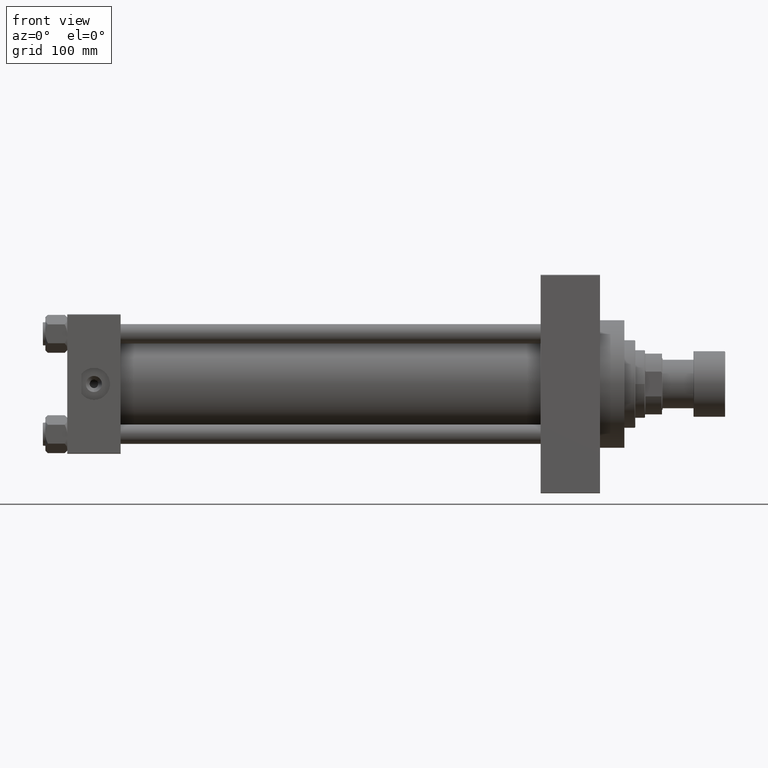
[diagram: clean part render]
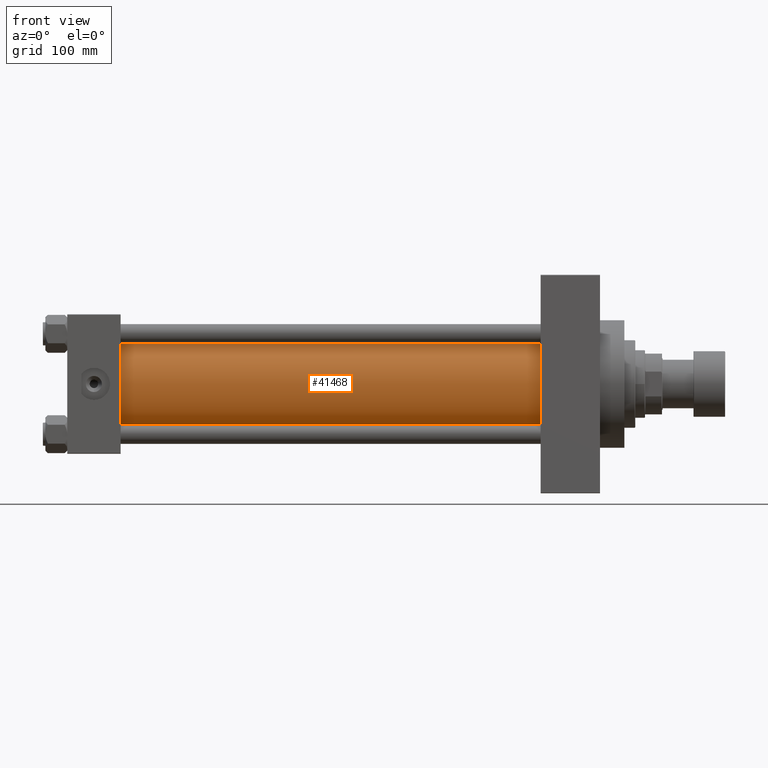
[diagram: same view with one face highlighted and labeled with its STEP entity id]
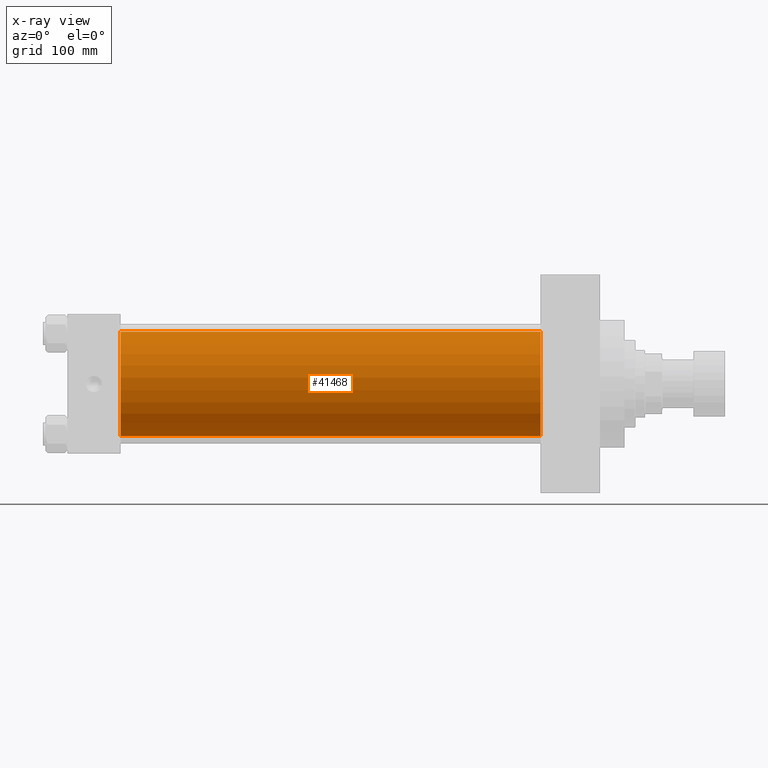
[diagram: x-ray of the same camera — body ghosted, the highlighted face saturated]
A machine part, front view. The second image highlights one B-rep face of the part: STEP entity #41468.
The next image is the same camera in x-ray: the body ghosted, the highlighted face saturated — about 0% of this face is hidden behind the body in this view.
In plain terms, the highlighted cylindrical surface (partial cylindrical patch) has radius 43 mm, axis along (-1, -0, -0).
Its self-contained STEP definition (entity closure, byte-faithful):
#579 = DIRECTION ( 'NONE',  ( -1.000000000000000000, -0.000000000000000000, -0.000000000000000000 ) ) ;
#2110 = CIRCLE ( 'NONE', #26991, 43.00000000000000000 ) ;
#2262 = CARTESIAN_POINT ( 'NONE',  ( 389.9999999999999432, 2.663896022368408223E-15, -43.00000000000000000 ) ) ;
#4836 = CARTESIAN_POINT ( 'NONE',  ( 389.9999999999999432, -2.602085213965210642E-15, 0.000000000000000000 ) ) ;
#5085 = FACE_OUTER_BOUND ( 'NONE', #17261, .T. ) ;
#5359 = DIRECTION ( 'NONE',  ( 1.000000000000000000, -0.000000000000000000, 0.000000000000000000 ) ) ;
#6091 = VERTEX_POINT ( 'NONE', #8249 ) ;
#7779 = VERTEX_POINT ( 'NONE', #41995 ) ;
#8249 = CARTESIAN_POINT ( 'NONE',  ( 43.99999999999998579, 2.663896022368408223E-15, -43.00000000000000000 ) ) ;
#8722 = EDGE_CURVE ( 'NONE', #19747, #7779, #15361, .T. ) ;
#9591 = CIRCLE ( 'NONE', #32014, 43.00000000000000000 ) ;
#13797 = DIRECTION ( 'NONE',  ( -1.000000000000000000, -0.000000000000000000, -0.000000000000000000 ) ) ;
#15361 = LINE ( 'NONE', #19390, #47943 ) ;
#15847 = ORIENTED_EDGE ( 'NONE', *, *, #48899, .T. ) ;
#17261 = EDGE_LOOP ( 'NONE', ( #28875, #48741, #21890, #15847 ) ) ;
#19390 = CARTESIAN_POINT ( 'NONE',  ( 389.9999999999999432, -2.602085213965210642E-15, 43.00000000000000000 ) ) ;
#19747 = VERTEX_POINT ( 'NONE', #20420 ) ;
#19899 = DIRECTION ( 'NONE',  ( 0.000000000000000000, 0.000000000000000000, 1.000000000000000000 ) ) ;
#20420 = CARTESIAN_POINT ( 'NONE',  ( 389.9999999999999432, -2.602085213965210642E-15, 43.00000000000000000 ) ) ;
#20461 = VERTEX_POINT ( 'NONE', #43593 ) ;
#21890 = ORIENTED_EDGE ( 'NONE', *, *, #8722, .T. ) ;
#22053 = DIRECTION ( 'NONE',  ( 0.000000000000000000, 0.000000000000000000, -1.000000000000000000 ) ) ;
#24904 = EDGE_CURVE ( 'NONE', #20461, #6091, #32612, .T. ) ;
#26991 = AXIS2_PLACEMENT_3D ( 'NONE', #30310, #45621, #22053 ) ;
#28875 = ORIENTED_EDGE ( 'NONE', *, *, #24904, .F. ) ;
#30310 = CARTESIAN_POINT ( 'NONE',  ( 389.9999999999999432, -2.602085213965210642E-15, 0.000000000000000000 ) ) ;
#32014 = AXIS2_PLACEMENT_3D ( 'NONE', #43732, #5359, #40456 ) ;
#32612 = LINE ( 'NONE', #2262, #43859 ) ;
#34936 = CYLINDRICAL_SURFACE ( 'NONE', #41369, 43.00000000000000000 ) ;
#37948 = DIRECTION ( 'NONE',  ( -1.000000000000000000, -0.000000000000000000, -0.000000000000000000 ) ) ;
#40456 = DIRECTION ( 'NONE',  ( 0.000000000000000000, 0.000000000000000000, 1.000000000000000000 ) ) ;
#41369 = AXIS2_PLACEMENT_3D ( 'NONE', #4836, #579, #19899 ) ;
#41468 = ADVANCED_FACE ( 'NONE', ( #5085 ), #34936, .T. ) ;
#41964 = EDGE_CURVE ( 'NONE', #19747, #20461, #2110, .T. ) ;
#41995 = CARTESIAN_POINT ( 'NONE',  ( 43.99999999999998579, -2.602085213965210642E-15, 43.00000000000000000 ) ) ;
#43593 = CARTESIAN_POINT ( 'NONE',  ( 389.9999999999999432, 2.663896022368408223E-15, -43.00000000000000000 ) ) ;
#43732 = CARTESIAN_POINT ( 'NONE',  ( 43.99999999999998579, -2.602085213965210642E-15, 0.000000000000000000 ) ) ;
#43859 = VECTOR ( 'NONE', #13797, 1000.000000000000000 ) ;
#45621 = DIRECTION ( 'NONE',  ( 1.000000000000000000, 0.000000000000000000, 0.000000000000000000 ) ) ;
#47943 = VECTOR ( 'NONE', #37948, 1000.000000000000000 ) ;
#48741 = ORIENTED_EDGE ( 'NONE', *, *, #41964, .F. ) ;
#48899 = EDGE_CURVE ( 'NONE', #7779, #6091, #9591, .T. ) ;